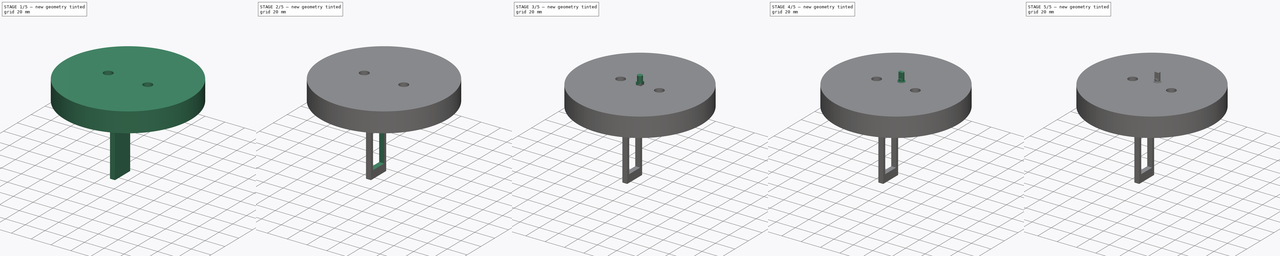
[diagram: build sequence overview — one tinted view per stage of 5, left to right]
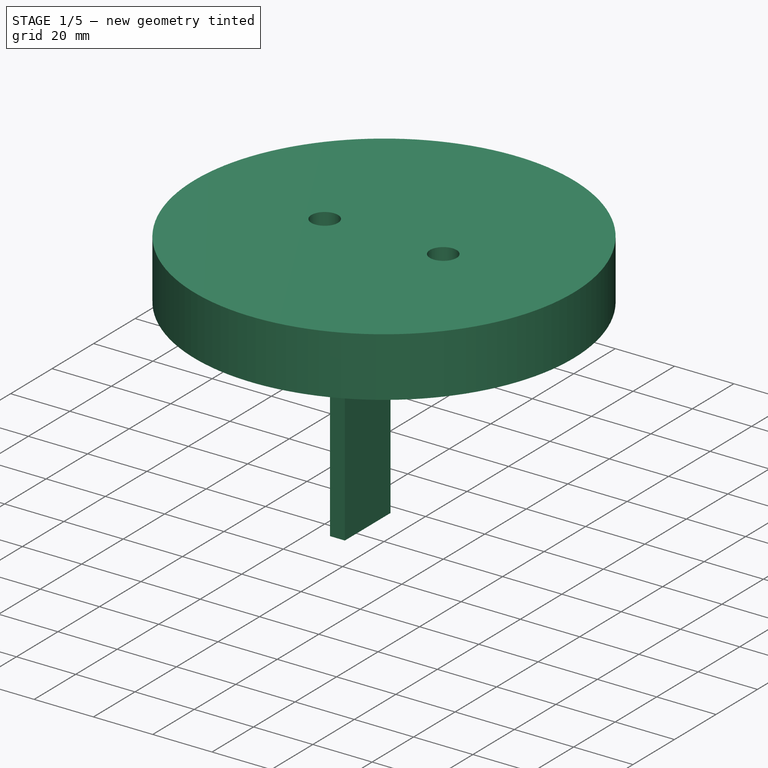
[diagram: stage 1 of 5 — iso view after this stage's code; geometry added in this stage tinted green]
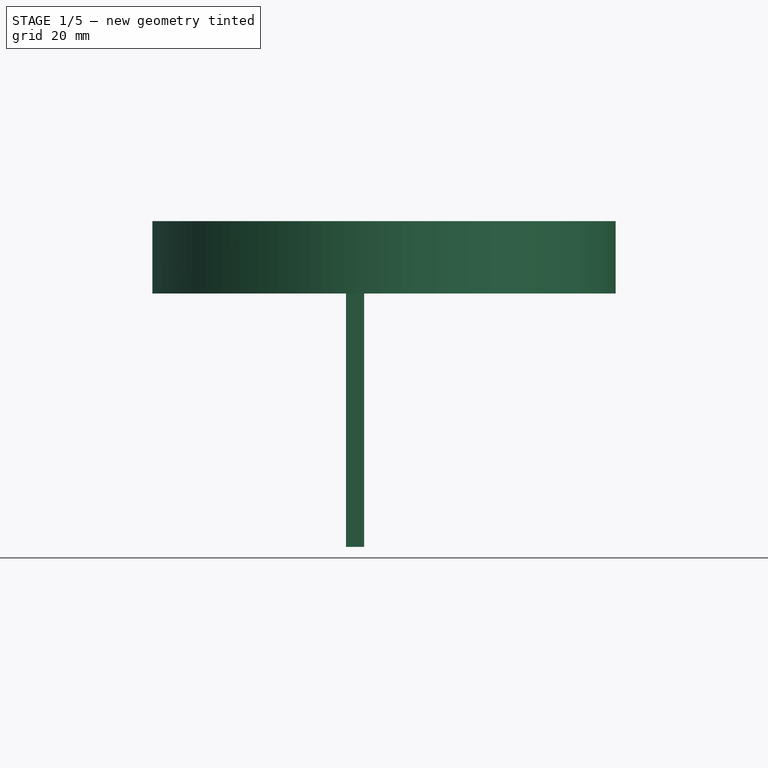
[diagram: stage 1 of 5 — front view after this stage's code; geometry added in this stage tinted green]
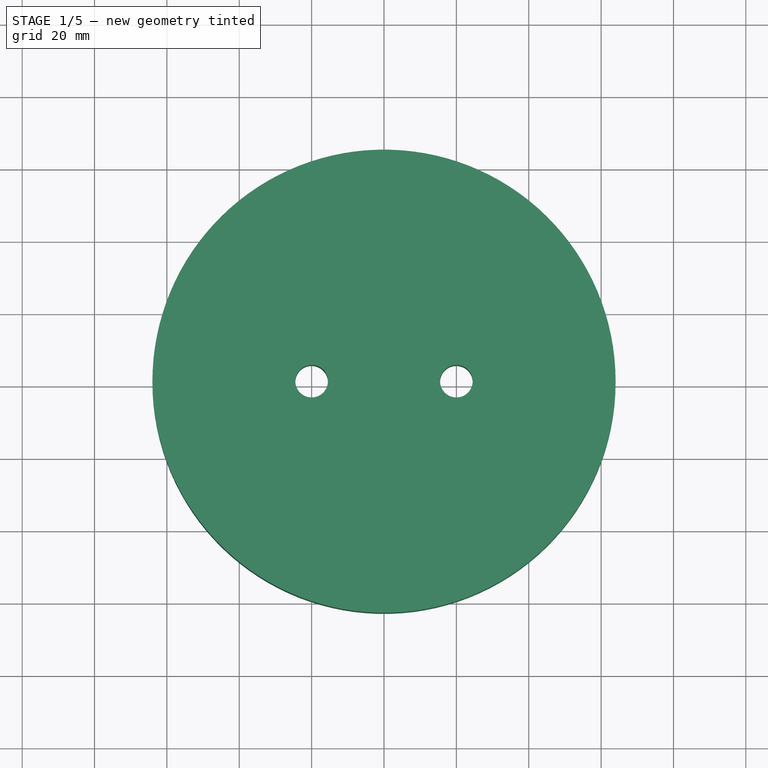
[diagram: stage 1 of 5 — top view after this stage's code; geometry added in this stage tinted green]
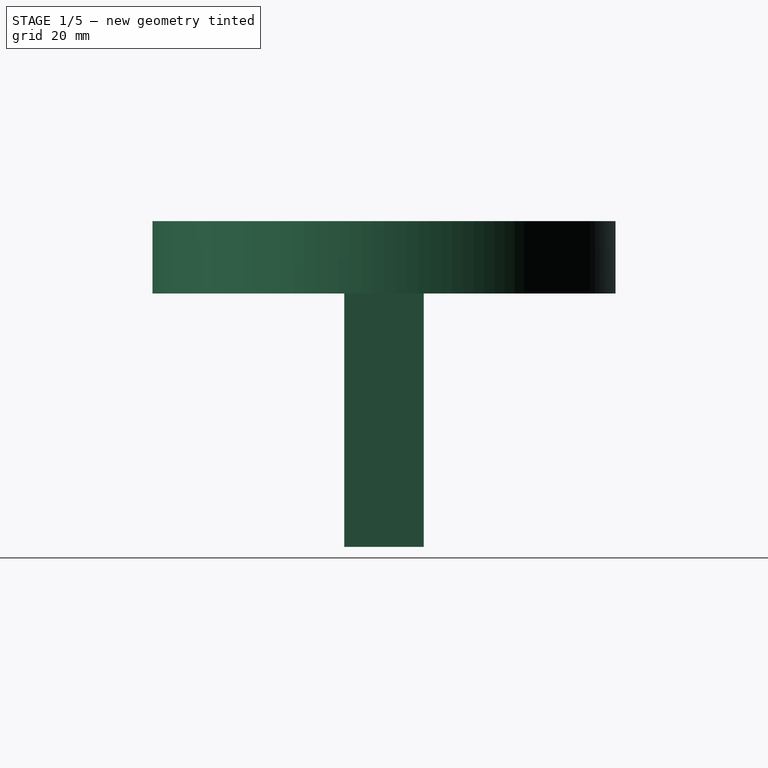
[diagram: stage 1 of 5 — right view after this stage's code; geometry added in this stage tinted green]
FCSTD DOCUMENT  (FreeCAD 0.19R24267 +148 (Git))
Label: Mecanismo_completo_V2
License: All rights reserved
LicenseURL: http://en.wikipedia.org/wiki/All_rights_reserved
objects: Sketcher::SketchObject×9, PartDesign::Pad×5, Part::Cylinder×4, PartDesign::Pocket×4, Part::Box×3, Part::Cut×3, App::LinkGroup×2, PartDesign::Body×2, Part::Fuse×1, Part::MultiCommon×1, Part::Part2DObjectPython×1
note: 42 computed .brp shape members not serialized (recipe doc carries the construction recipe); baked Part::Feature solids carry a one-line shape summary decoded from their .brp

FEATURE [PartDesign::Body] Body  label="Engranaje_004"
  Group = -> [Sketch001,InvoluteGear,Sketch,Sketch002,Sketch003,Pad,Pocket,Pad001,Pad002]
  Origin = -> Origin
  Placement = pos=(0,6,0) rot=(0,0,1;0rad)
  Tip = -> Pad002
FEATURE [App::LinkGroup] LinkGroup001  label="Engranaje_1"
  ElementList = -> [Body]
  LinkMode = 0
  Placement = pos=(-57,6.79493e-06,4.76837e-07) rot=(0,0,1;0rad)
FEATURE [Sketcher::SketchObject] Sketch004  label="Base"
  FullyConstrained = false
  MapMode = 5
  sketch-geometry (4):
    g0: GeomPoint X=0 Y=44.0044 Z=0
    g1: GeomPoint X=0 Y=44.0044 Z=0
    g2: GeomPoint X=0 Y=64.0044 Z=0
    g3: Circle CenterX=0 CenterY=0 CenterZ=0 NormalX=0 NormalY=0 NormalZ=1 AngleXU=0 Radius=64.0044
  constraints (6):
    c: PointOnObject(g1,g-2)
    c: Coincident(g0,g1)
    c: PointOnObject(g2,g-2)
    c: Distance(g2,g0) = 20
    c: Coincident(g3,g-1)
    c: PointOnObject(g2,g3)
FEATURE [Sketcher::SketchObject] Sketch005  label="Gancho_izquierdo001"
  FullyConstrained = true
  MapMode = 5
  sketch-geometry (2):
    g0: GeomPoint X=-20 Y=0 Z=0
    g1: Circle CenterX=-20 CenterY=0 CenterZ=0 NormalX=0 NormalY=0 NormalZ=1 AngleXU=0 Radius=4.5
  constraints (4):
    c: PointOnObject(g0,g-1)
    c: Distance(g-1,g0) = 20
    c: Coincident(g1,g0)
    c: Radius(g1) = 4.5
FEATURE [Sketcher::SketchObject] Sketch006  label="Gancho_derecho001"
  FullyConstrained = true
  MapMode = 5
  sketch-geometry (2):
    g0: GeomPoint X=20 Y=0 Z=0
    g1: Circle CenterX=20 CenterY=0 CenterZ=0 NormalX=0 NormalY=0 NormalZ=1 AngleXU=0 Radius=4.5
  constraints (4):
    c: PointOnObject(g0,g-1)
    c: Distance(g-1,g0) = 20
    c: Coincident(g1,g0)
    c: Radius(g1) = 4.5
FEATURE [PartDesign::Pad] Pad003
  Direction = (1,1,1)
  Length = 20
  Length2 = 100
  Profile = -> Sketch004
  Type = 0
FEATURE [PartDesign::Pocket] Pocket001
  BaseFeature = -> Pad003
  Length = 20
  Length2 = 100
  Profile = -> Sketch006
  Reversed = true
  Type = 0
FEATURE [PartDesign::Pocket] Pocket002
  BaseFeature = -> Pocket001
  Length = 20
  Length2 = 100
  Profile = -> Sketch005
  Reversed = true
  Type = 0
FEATURE [Sketcher::SketchObject] Sketch007
  FullyConstrained = true
  MapMode = 5
  sketch-geometry (5):
    g0: LineSegment StartX=-10.5 StartY=11 StartZ=0 EndX=-5.5 EndY=11 EndZ=0
    g1: LineSegment StartX=-5.5 StartY=11 StartZ=0 EndX=-5.5 EndY=-11 EndZ=0
    g2: LineSegment StartX=-5.5 StartY=-11 StartZ=0 EndX=-10.5 EndY=-11 EndZ=0
    g3: LineSegment StartX=-10.5 StartY=-11 StartZ=0 EndX=-10.5 EndY=11 EndZ=0
    g4: GeomPoint X=-8 Y=5e-16 Z=0
  constraints (13):
    c: Coincident(g0,g1)
    c: Coincident(g1,g2)
    c: Coincident(g2,g3)
    c: Coincident(g3,g0)
    c: Horizontal(g0)
    c: Horizontal(g2)
    c: Vertical(g1)
    c: Vertical(g3)
    c: PointOnObject(g4,g-1)
    c: Distance(g-1,g4) = 8
    c: Symmetric(g1,g0,g4)
    c: Distance(g0) = 5
    c: Distance(g1) = 22
FEATURE [PartDesign::Pad] Pad004  label="Cuadro"
  BaseFeature = -> Pocket002
  Direction = (1,1,1)
  Length = 70
  Length2 = 100
  Profile = -> Sketch007
  Reversed = true
  Type = 0
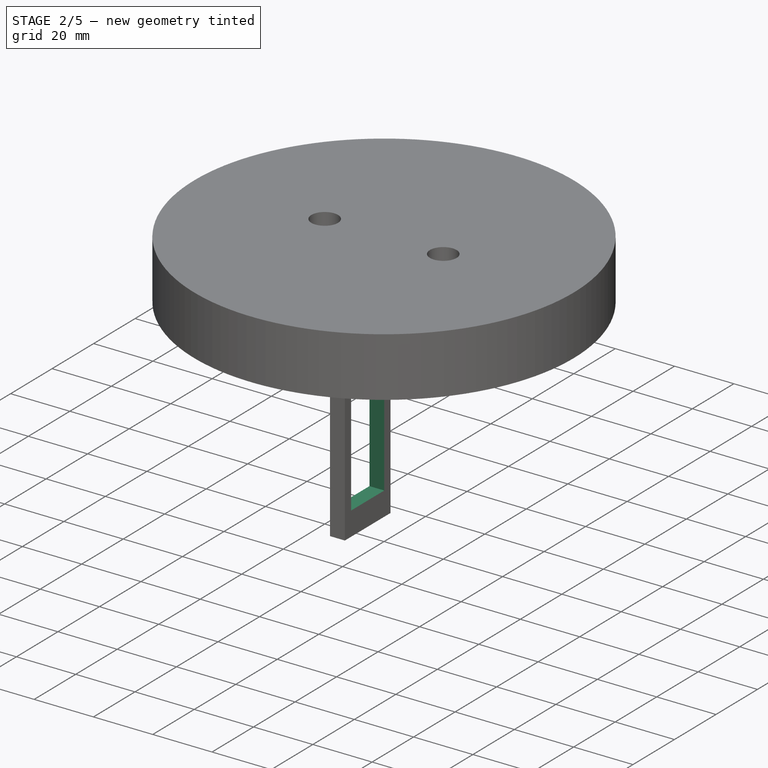
[diagram: stage 2 of 5 — iso view after this stage's code; geometry added in this stage tinted green]
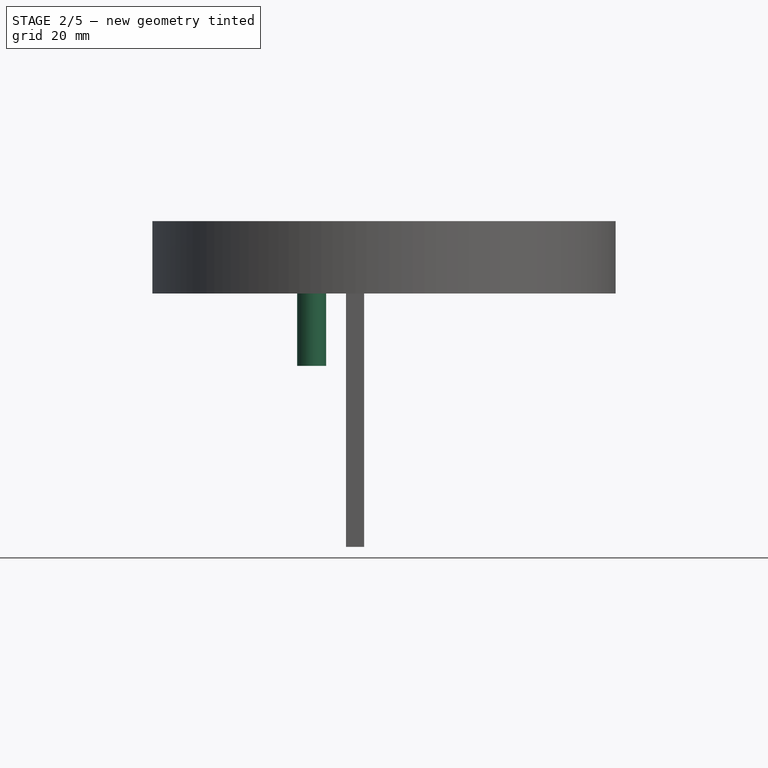
[diagram: stage 2 of 5 — front view after this stage's code; geometry added in this stage tinted green]
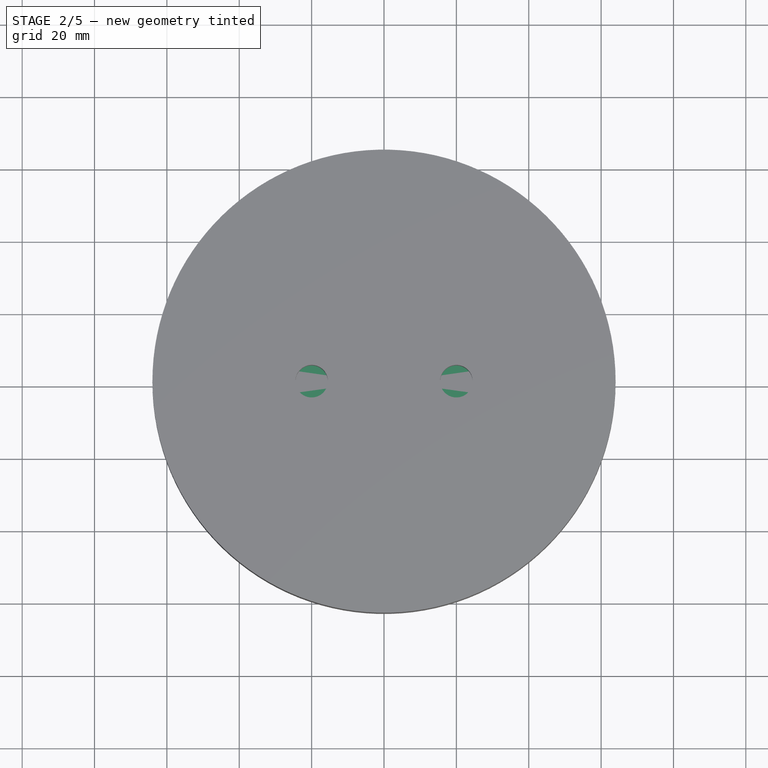
[diagram: stage 2 of 5 — top view after this stage's code; geometry added in this stage tinted green]
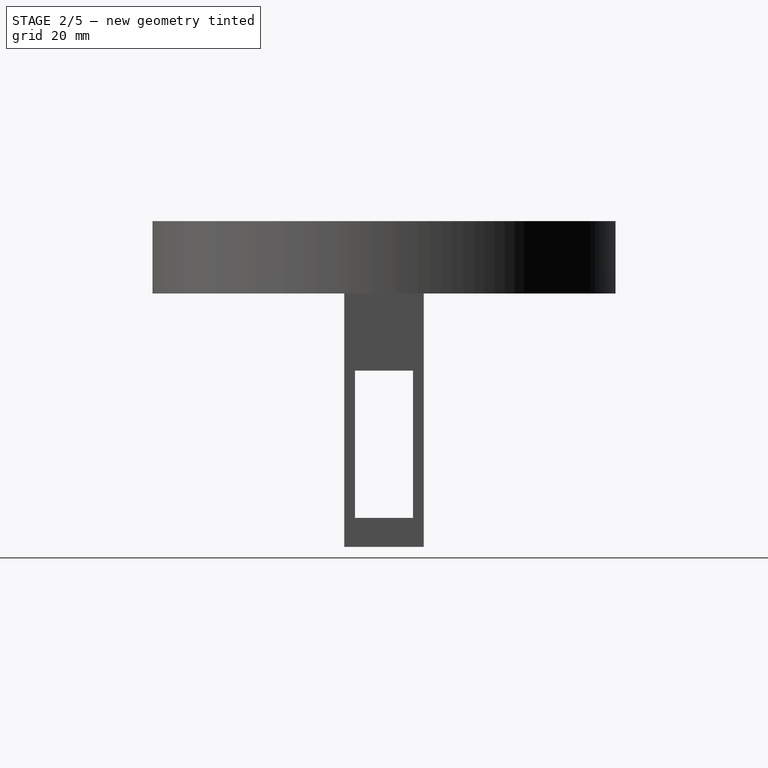
[diagram: stage 2 of 5 — right view after this stage's code; geometry added in this stage tinted green]
FEATURE [Part::Cut] Cut001
  Placement = pos=(0,0,0) rot=(0,0,1;3.14159rad)
FEATURE [Part::Cut] Cut002
FEATURE [Sketcher::SketchObject] Sketch001  label="Orificio"
  FullyConstrained = true
  MapMode = 5
  sketch-geometry (10):
    g0: LineSegment StartX=-2.25 StartY=1.75 StartZ=0 EndX=2.25 EndY=1.75 EndZ=0
    g1: LineSegment StartX=-2.25 StartY=-1.75 StartZ=0 EndX=2.25 EndY=-1.75 EndZ=0
    g2: GeomPoint X=0 Y=1.75 Z=0
    g3: GeomPoint X=0 Y=-1.75 Z=0
    g4: LineSegment StartX=0 StartY=1.75 StartZ=0 EndX=0 EndY=-1.75 EndZ=0
    g5: GeomPoint X=0 Y=1.75 Z=0
    g6: ArcOfCircle CenterX=0 CenterY=0 CenterZ=0 NormalX=0 NormalY=0 NormalZ=1 AngleXU=0 Radius=2.85044 StartAngle=2.48055 EndAngle=3.80264
    g7: ArcOfCircle CenterX=0 CenterY=0 CenterZ=0 NormalX=0 NormalY=0 NormalZ=1 AngleXU=0 Radius=2.85044 StartAngle=5.62214 EndAngle=6.94423
    g8: GeomPoint X=-2.85044 Y=0 Z=0
    g9: GeomPoint X=-2.85044 Y=0 Z=0
  constraints (26):
    c: Distance(g1,g0) = 3.5
    c: Symmetric(g0,g1,g-1)
    c: Equal(g1,g0)
    c: Symmetric(g0,g0,g-2)
    c: PointOnObject(g2,g0)
    c: Distance(g2,g0) = 2.25
    c: Distance(g2,g0) = 2.25
    c: PointOnObject(g3,g1)
    c: Distance(g3,g1) = 2.25
    c: Coincident(g4,g2)
    c: Coincident(g4,g3)
    c: Vertical(g4)
    c: Distance(g4) = 3.5
    c: Distance(g0) = 4.5
    c: PointOnObject(g5,g-2)
    c: Coincident(g2,g5)
    c: Coincident(g6,g-1)
    c: Coincident(g6,g0)
    c: Coincident(g6,g1)
    c: Coincident(g7,g6)
    c: Coincident(g7,g0)
    c: Coincident(g7,g1)
    c: PointOnObject(g8,g-1)
    c: PointOnObject(g9,g6)
    c: Coincident(g8,g9)
    c: Distance(g8,g6) = 2.85044
FEATURE [Part::Part2DObjectPython] InvoluteGear  # Draft 2D object (typed FeaturePython)
  ExternalGear = true
  HighPrecision = true
  Modules = 4
  NumberOfTeeth = 20
  PressureAngle = 20
FEATURE [Sketcher::SketchObject] Sketch  label="Diametro"
  ExternalGeometry = -> [InvoluteGear]
  FullyConstrained = true
  MapMode = 5
  sketch-geometry (3):
    g0: GeomPoint X=0 Y=44.0044 Z=0
    g1: GeomPoint X=0 Y=44.0044 Z=0
    g2: GeomPoint X=0 Y=-44.0044 Z=0
  constraints (6):
    c: PointOnObject(g0,g-3)
    c: PointOnObject(g1,g-2)
    c: Coincident(g0,g1)
    c: PointOnObject(g2,g-4)
    c: PointOnObject(g2,g-2)
    c: Distance(g0,g2) = 88.0088
FEATURE [Sketcher::SketchObject] Sketch002  label="Gancho_izquierdo"
  FullyConstrained = true
  MapMode = 5
  sketch-geometry (2):
    g0: GeomPoint X=-20 Y=0 Z=0
    g1: Circle CenterX=-20 CenterY=0 CenterZ=0 NormalX=0 NormalY=0 NormalZ=1 AngleXU=0 Radius=4
  constraints (4):
    c: PointOnObject(g0,g-1)
    c: Distance(g-1,g0) = 20
    c: Coincident(g1,g0)
    c: Radius(g1) = 4
FEATURE [Sketcher::SketchObject] Sketch003  label="Gancho_derecho"
  FullyConstrained = true
  MapMode = 5
  sketch-geometry (2):
    g0: GeomPoint X=20 Y=0 Z=0
    g1: Circle CenterX=20 CenterY=0 CenterZ=0 NormalX=0 NormalY=0 NormalZ=1 AngleXU=0 Radius=4
  constraints (4):
    c: PointOnObject(g0,g-1)
    c: Distance(g-1,g0) = 20
    c: Coincident(g1,g0)
    c: Radius(g1) = 4
FEATURE [App::LinkGroup] LinkGroup  label="Stepper"
  ElementList = -> [Cut,Cylinder,Cylinder003,Cut002,Common,Cut001]
  LinkMode = 0
  Placement = pos=(-57,-2.00001,48.75) rot=(0,1,0;3.14159rad)
FEATURE [PartDesign::Pad] Pad
  Direction = (1,1,1)
  Length = 10
  Length2 = 100
  Profile = -> InvoluteGear
  Type = 0
FEATURE [PartDesign::Pocket] Pocket
  BaseFeature = -> Pad
  Length = 10
  Length2 = 100
  Profile = -> Sketch001
  Reversed = true
  Type = 0
FEATURE [PartDesign::Pad] Pad001
  BaseFeature = -> Pocket
  Direction = (1,1,1)
  Length = 20
  Length2 = 100
  Profile = -> Sketch002
  Reversed = true
  Type = 0
FEATURE [Sketcher::SketchObject] Sketch008
  ExternalGeometry = -> [Pad004]
  FullyConstrained = false
  MapMode = 5
  Placement = pos=(-5.5,0,0) rot=(0.57735,0.57735,0.57735;2.0944rad)
  Support = -> [Pad004]
  sketch-geometry (13):
    g0: GeomPoint X=0 Y=-70 Z=0
    g1: GeomPoint X=0 Y=-70 Z=0
    g2: GeomPoint X=0 Y=-70 Z=0
    g3: GeomPoint X=8 Y=0 Z=0
    g4: GeomPoint X=-8 Y=0 Z=0
    g5: LineSegment StartX=8 StartY=-62 StartZ=0 EndX=8 EndY=-21.3 EndZ=0
    g6: LineSegment StartX=-8 StartY=-62 StartZ=0 EndX=-8 EndY=-21.3 EndZ=0
    g7: GeomPoint X=8 Y=-41.65 Z=0
    g8: GeomPoint X=-8 Y=-41.65 Z=0
    g9: LineSegment StartX=8 StartY=-62 StartZ=0 EndX=-8 EndY=-62 EndZ=0
    g10: LineSegment StartX=8 StartY=-21.3 StartZ=0 EndX=-8 EndY=-21.3 EndZ=0
    g11: GeomPoint X=0 Y=-62 Z=0
    g12: GeomPoint X=0 Y=-62 Z=0
  constraints (28):
    c: PointOnObject(g0,g-2)
    c: PointOnObject(g1,g-5)
    c: Coincident(g0,g1)
    c: Coincident(g2,g0)
    c: Distance(g3,g-3) = 3
    c: Distance(g4,g-4) = 3
    c: Vertical(g5)
    c: Distance(g-4) = 70
    c: Vertical(g6)
    c: Distance(g5) = 40.7
    c: Equal(g5,g6)
    c: PointOnObject(g7,g5)
    c: Distance(g7,g5) = 20.35
    c: Distance(g7,g5) = 20.35
    c: PointOnObject(g8,g6)
    c: Distance(g8,g6) = 20.35
    c: Coincident(g9,g5)
    c: Coincident(g9,g6)
    c: Horizontal(g9)
    c: Coincident(g10,g5)
    c: Coincident(g10,g6)
    c: Distance(g9) = 16
    c: PointOnObject(g11,g9)
    c: PointOnObject(g12,g-2)
    c: Coincident(g11,g12)
    c: Distance(g5,g11) = 8
    c: Distance(g11,g6) = 8
    c: Distance(g0,g11) = 8
FEATURE [PartDesign::Pocket] Pocket003  label="Orificio_servo"
  BaseFeature = -> Pad004
  Length = 5
  Length2 = 100
  Profile = -> Sketch008
  Type = 0
FEATURE [PartDesign::Body] Body001  label="Base001"
  Group = -> [Sketch004,Sketch005,Sketch006,Pad003,Pocket001,Pocket002,Sketch007,Pad004,Sketch008,Pocket003]
  Origin = -> Origin001
  Placement = pos=(-57,6,-43) rot=(0,0,1;0rad)
  Tip = -> Pocket003
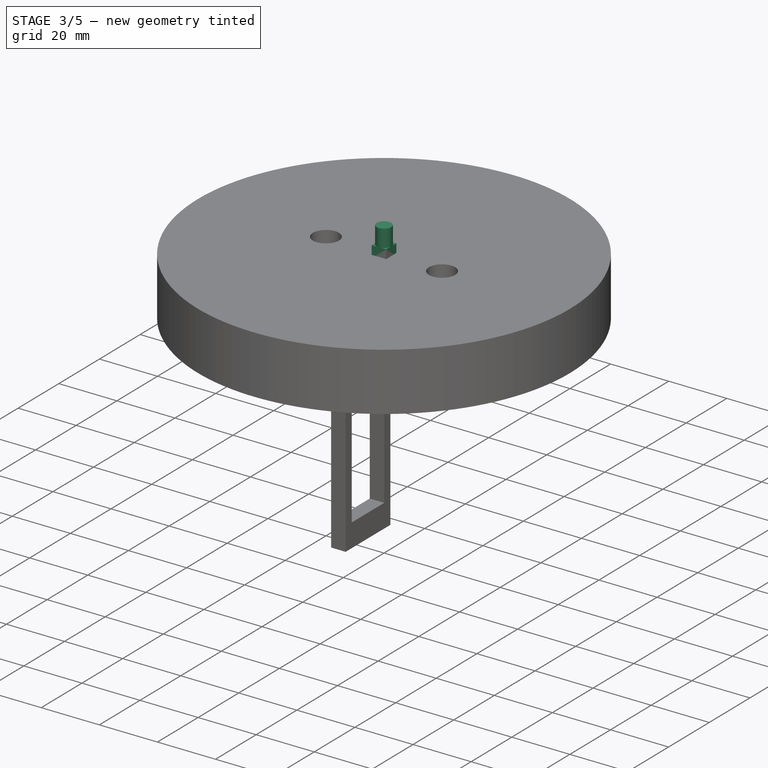
[diagram: stage 3 of 5 — iso view after this stage's code; geometry added in this stage tinted green]
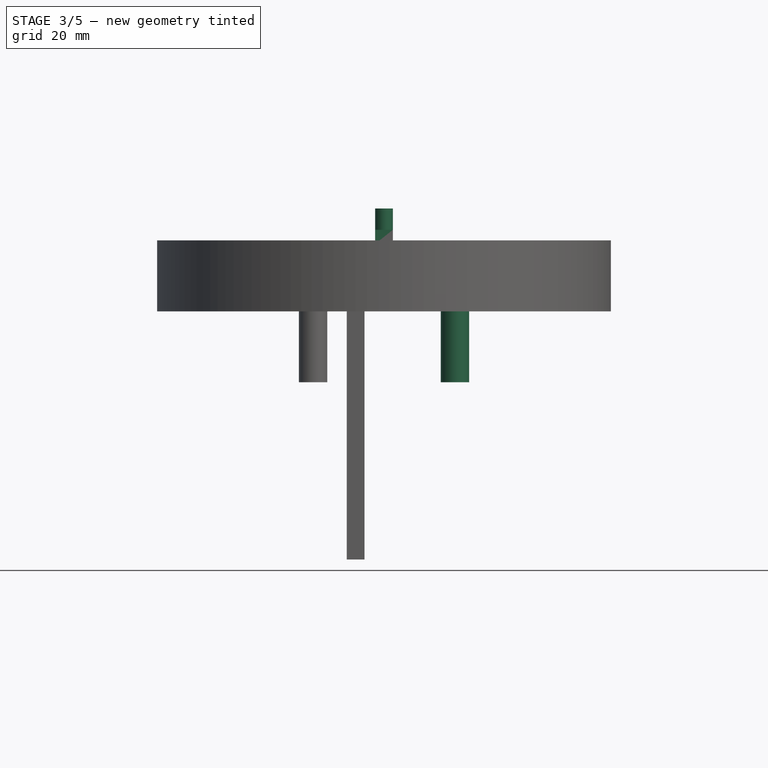
[diagram: stage 3 of 5 — front view after this stage's code; geometry added in this stage tinted green]
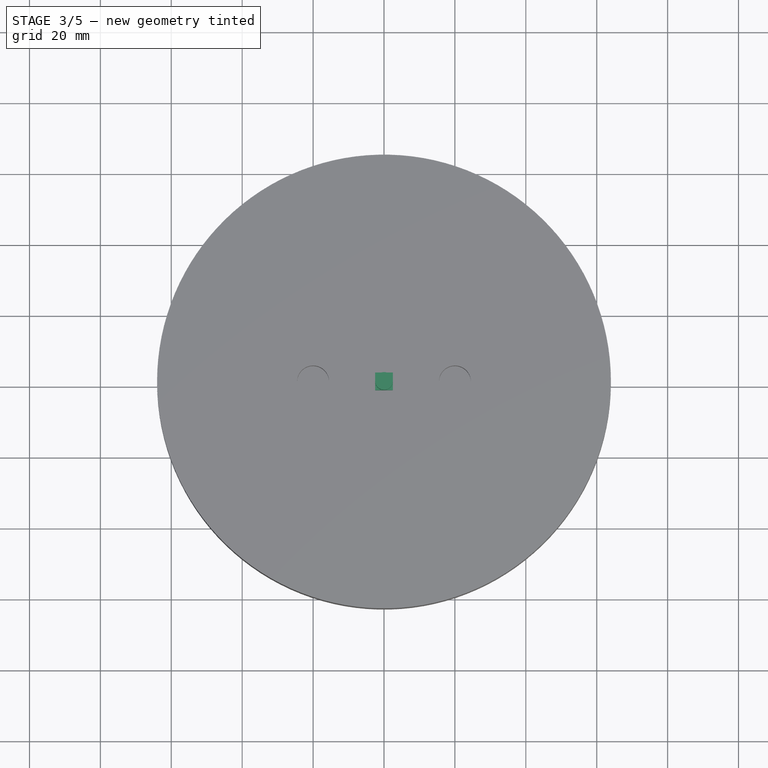
[diagram: stage 3 of 5 — top view after this stage's code; geometry added in this stage tinted green]
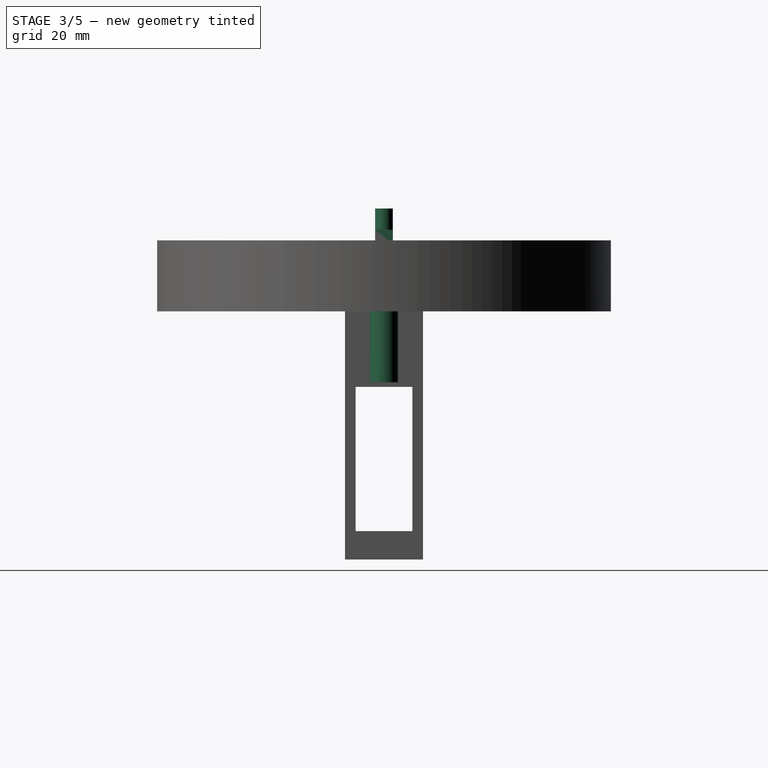
[diagram: stage 3 of 5 — right view after this stage's code; geometry added in this stage tinted green]
FEATURE [Part::Box] Box001  label="Cube001"
  AttacherType = Attacher::AttachEngine3D
  Height = 4
  Length = 5
  Placement = pos=(-2.5,-2.5,19) rot=(0,0,1;0rad)
  Width = 5
FEATURE [Part::Cylinder] Cylinder002
  Angle = 360
  AttacherType = Attacher::AttachEngine3D
  Height = 8.5
  Placement = pos=(0,0,20.5) rot=(0,0,1;0rad)
  Radius = 2.5
FEATURE [PartDesign::Pad] Pad002
  BaseFeature = -> Pad001
  Direction = (1,1,1)
  Length = 20
  Length2 = 100
  Profile = -> Sketch003
  Reversed = true
  Type = 0
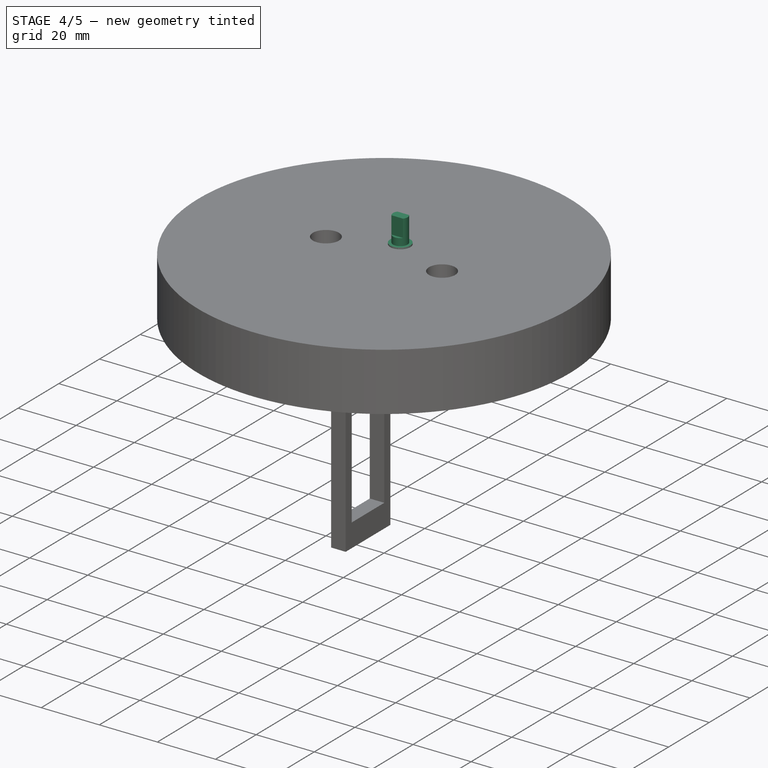
[diagram: stage 4 of 5 — iso view after this stage's code; geometry added in this stage tinted green]
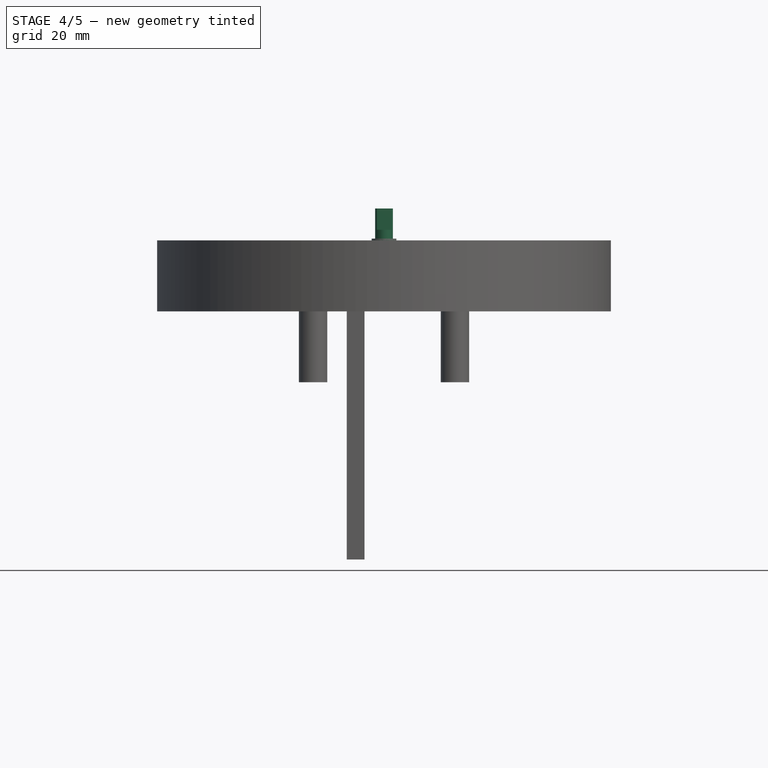
[diagram: stage 4 of 5 — front view after this stage's code; geometry added in this stage tinted green]
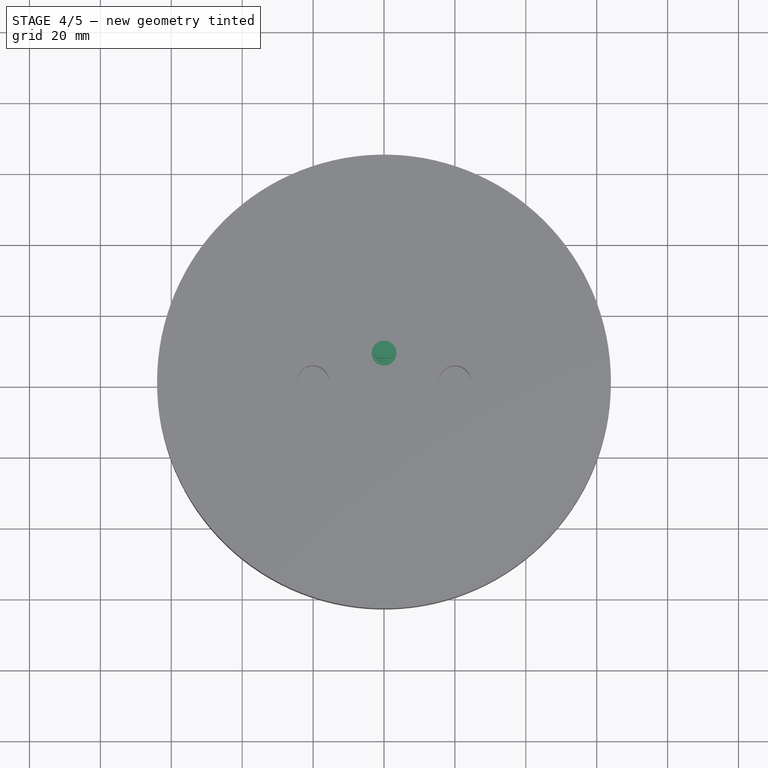
[diagram: stage 4 of 5 — top view after this stage's code; geometry added in this stage tinted green]
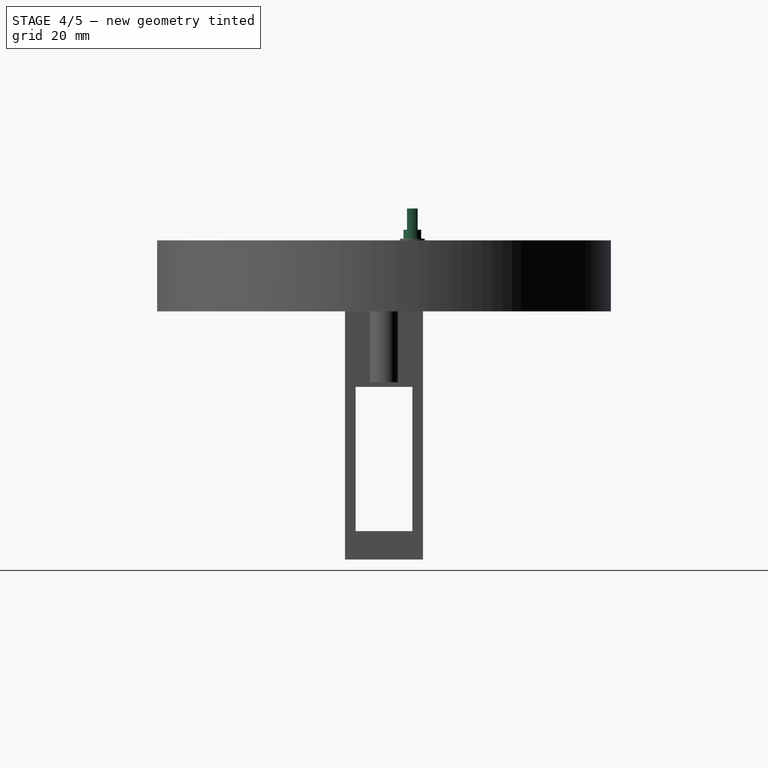
[diagram: stage 4 of 5 — right view after this stage's code; geometry added in this stage tinted green]
FEATURE [Part::Box] Box002  label="Cube002"
  AttacherType = Attacher::AttachEngine3D
  Height = 6
  Length = 5
  Placement = pos=(-2.5,-1.5,23) rot=(0,0,1;0rad)
  Width = 3
FEATURE [Part::Fuse] Fusion
  Base = -> Box001
  Tool = -> Box002
FEATURE [Part::Cylinder] Cylinder003
  Angle = 360
  AttacherType = Attacher::AttachEngine3D
  Height = 1.5
  Placement = pos=(0,8,19) rot=(0,0,1;0rad)
  Radius = 3.5
FEATURE [Part::MultiCommon] Common
  Placement = pos=(0,8,0) rot=(0,0,1;0rad)
  Shapes = -> [Cylinder002,Fusion]
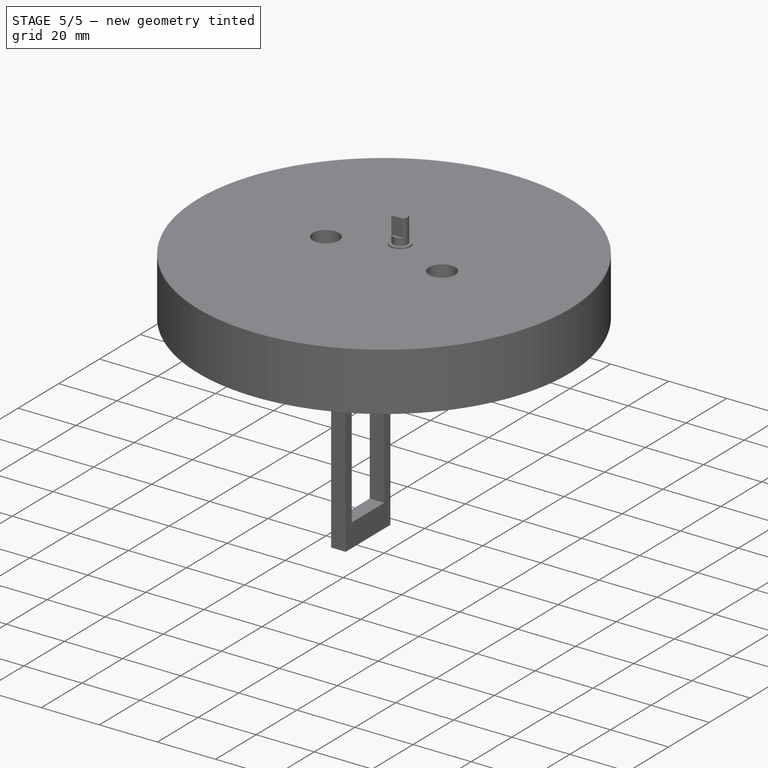
[diagram: stage 5 of 5 — iso view after this stage's code; geometry added in this stage tinted green]
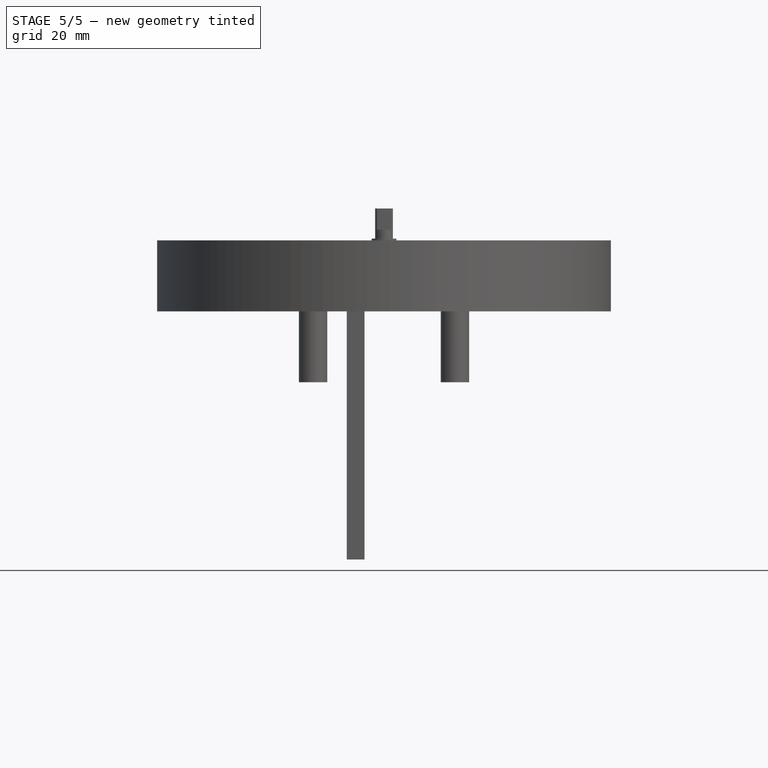
[diagram: stage 5 of 5 — front view after this stage's code; geometry added in this stage tinted green]
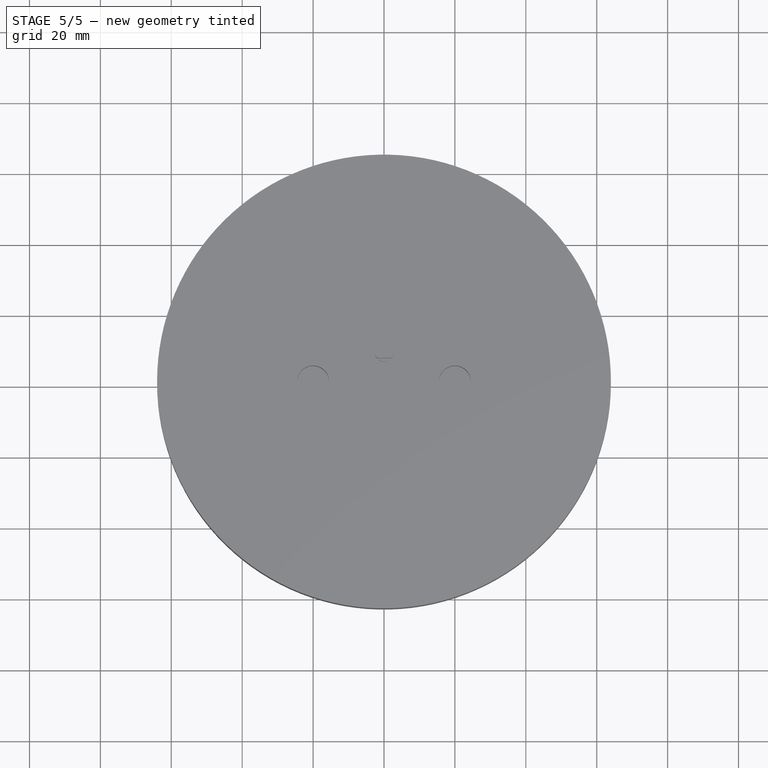
[diagram: stage 5 of 5 — top view after this stage's code; geometry added in this stage tinted green]
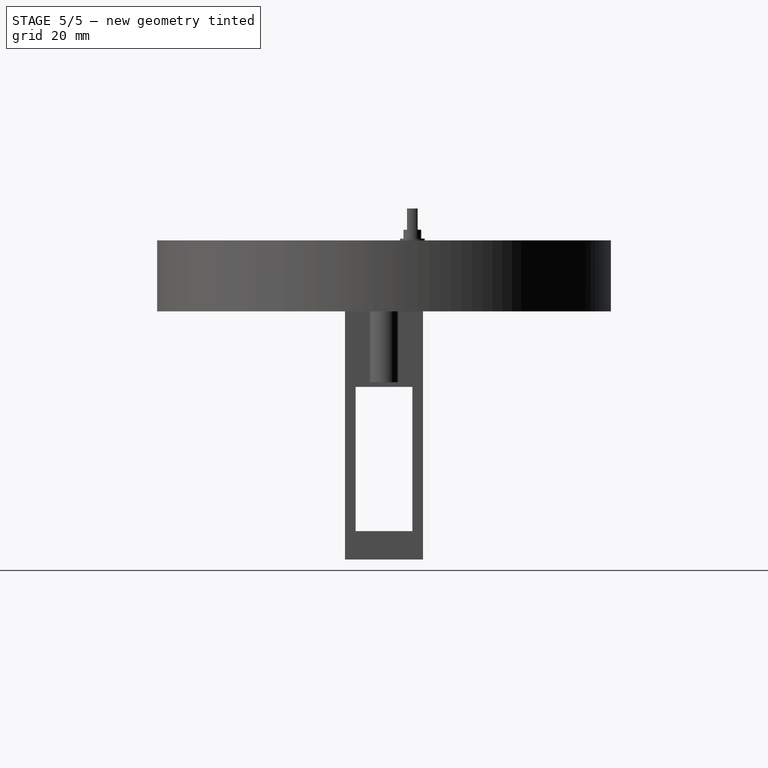
[diagram: stage 5 of 5 — right view after this stage's code; geometry added in this stage tinted green]
FEATURE [Part::Box] Box  label="Cube"
  AttacherType = Attacher::AttachEngine3D
  Height = 16.3
  Length = 17.5
  Placement = pos=(0,-7.25,2.7) rot=(0,0,1;0rad)
  Width = 14.5
FEATURE [Part::Cylinder] Cylinder001
  Angle = 360
  AttacherType = Attacher::AttachEngine3D
  Height = 19
  Radius = 14
FEATURE [Part::Cut] Cut
  Base = -> Box
  Placement = pos=(0,0,0) rot=(0,0,-1;1.5708rad)
  Tool = -> Cylinder001
FEATURE [Part::Cylinder] Cylinder
  Angle = 360
  AttacherType = Attacher::AttachEngine3D
  Height = 19
  Radius = 14
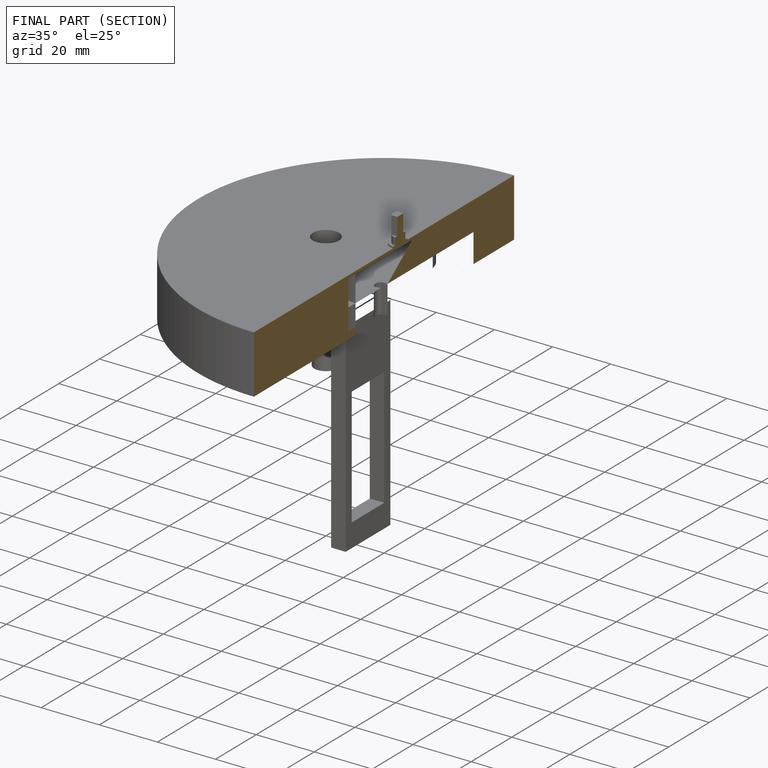
[diagram: finished part — half-section view (interior)]
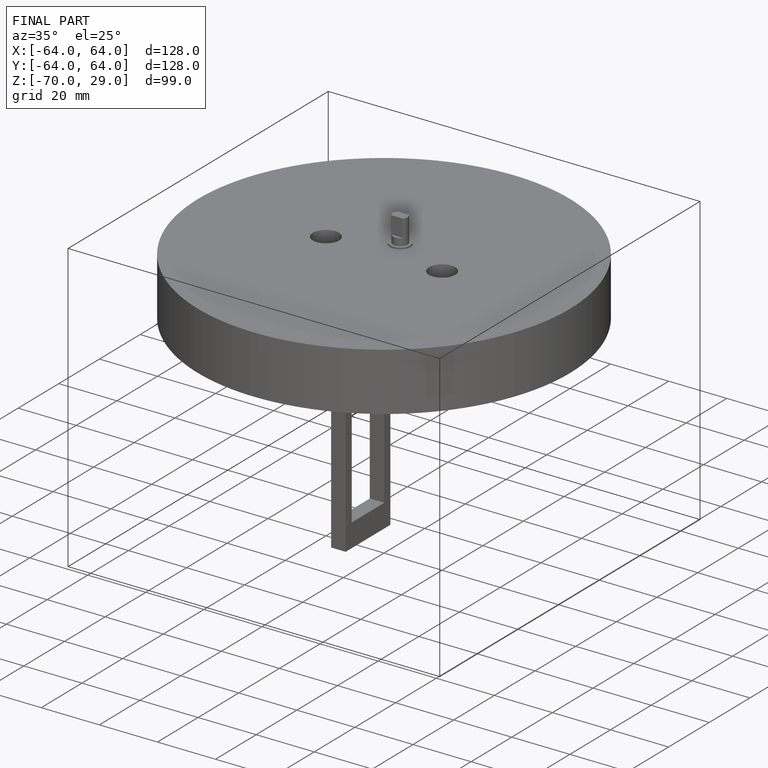
[diagram: finished part — iso view with bounding-box wireframe]
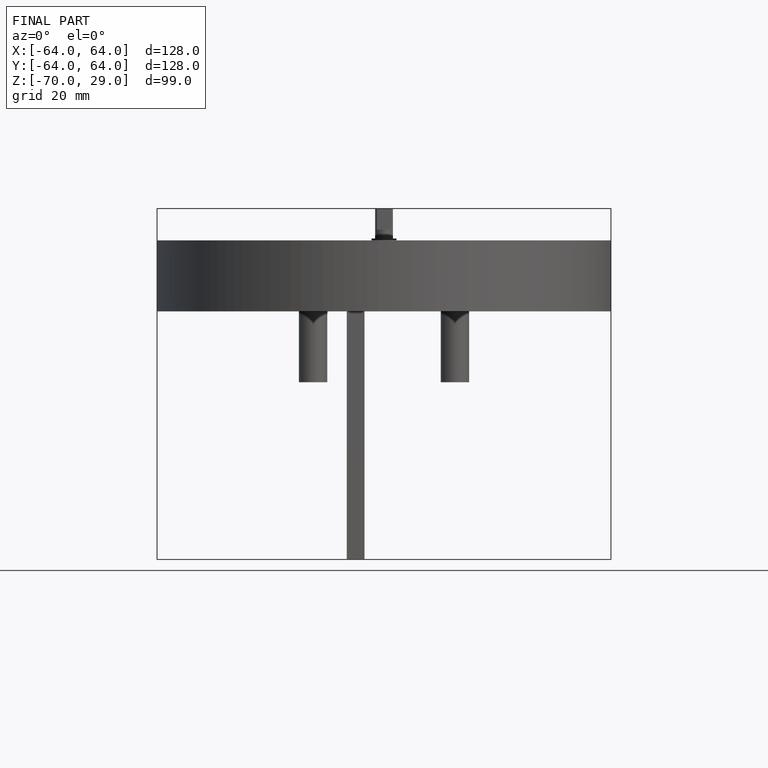
[diagram: finished part — front view with bounding-box wireframe]
